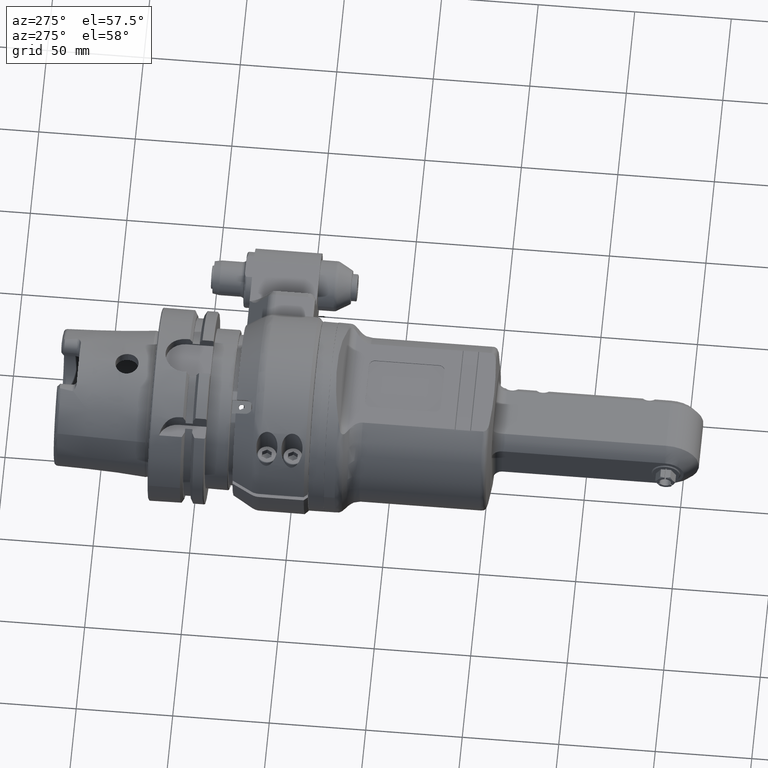
[diagram: clean part render]
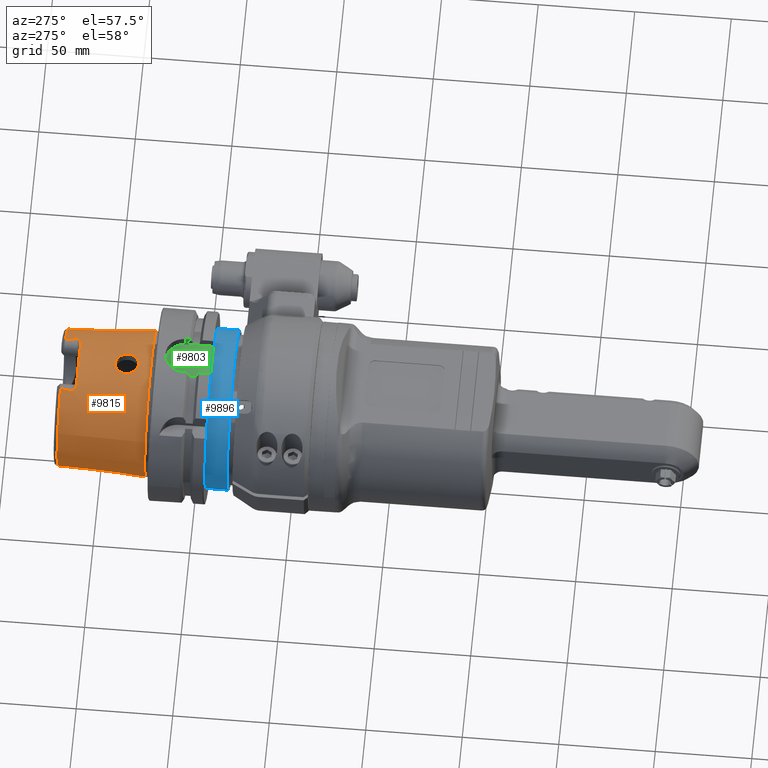
[diagram: same view with three faces highlighted in distinct colors, each labeled with its STEP entity id]
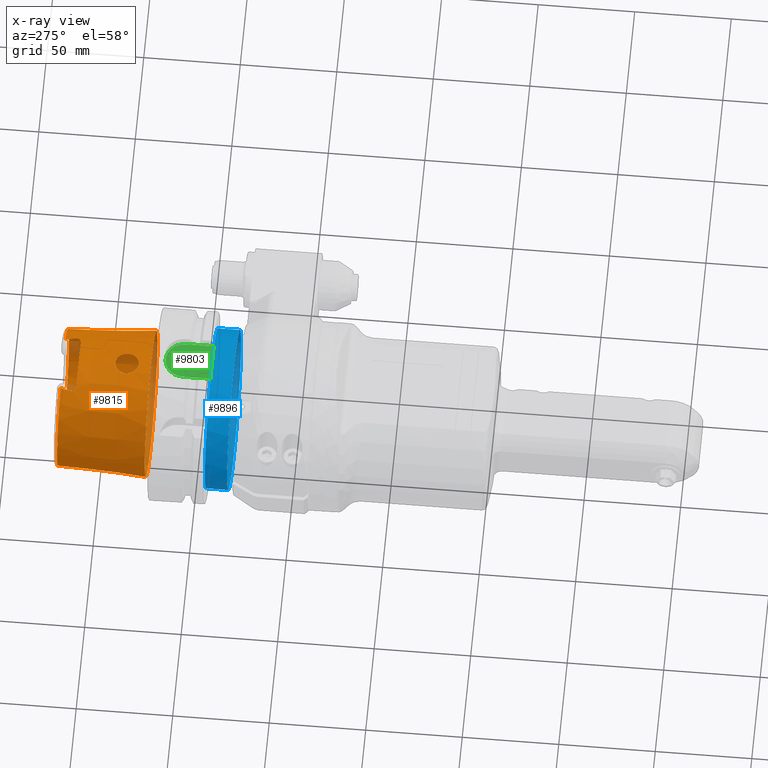
[diagram: x-ray of the same camera — body ghosted, the three highlighted faces saturated]
A machine part, auxiliary view with three faces highlighted in distinct colors.
The next image is the same camera in x-ray (body ghosted, the three faces saturated) — at least one of them is partly hidden behind the body in this view.
Their STEP definitions:

[orange] entity #9815 — the highlighted conical surface has half-angle 2.868 deg.
#120=FACE_BOUND('',#1542,.T.);
#121=FACE_BOUND('',#1543,.T.);
#223=(
BOUNDED_CURVE()
B_SPLINE_CURVE(2,(#56915,#56916,#56917),.UNSPECIFIED.,.F.,.F.)
B_SPLINE_CURVE_WITH_KNOTS((3,3),(2.97141344392928,3.96265835988855),
 .UNSPECIFIED.)
CURVE()
GEOMETRIC_REPRESENTATION_ITEM()
RATIONAL_B_SPLINE_CURVE((1.02464110441185,1.02628589834782,1.02628589827356))
REPRESENTATION_ITEM('')
);
#224=(
BOUNDED_CURVE()
B_SPLINE_CURVE(2,(#56984,#56985,#56986),.UNSPECIFIED.,.F.,.F.)
B_SPLINE_CURVE_WITH_KNOTS((3,3),(3.9626582701818,4.95390318622074),
 .UNSPECIFIED.)
CURVE()
GEOMETRIC_REPRESENTATION_ITEM()
RATIONAL_B_SPLINE_CURVE((1.02628589827313,1.02628589834766,1.02464110441169))
REPRESENTATION_ITEM('')
);
#653=CONICAL_SURFACE('',#10629,36.74017294717,0.0500570901447486);
#925=FACE_OUTER_BOUND('',#1541,.T.);
#1541=EDGE_LOOP('',(#7638,#7639,#7640,#7641,#7642,#7643,#7644,#7645,#7646,
#7647,#7648,#7649,#7650,#7651,#7652,#7653,#7654,#7655,#7656,#7657,#7658));
#1542=EDGE_LOOP('',(#7659));
#1543=EDGE_LOOP('',(#7660,#7661));
#2114=CIRCLE('',#10627,37.88261919706);
#2115=CIRCLE('',#10628,37.88261919706);
#2116=CIRCLE('',#10630,35.59772669727);
#2117=CIRCLE('',#10631,36.25402645881);
#2118=CIRCLE('',#10632,35.59772669727);
#2119=CIRCLE('',#10633,36.00353175058);
#2120=CIRCLE('',#10634,35.59772669727);
#2446=B_SPLINE_CURVE_WITH_KNOTS('',3,(#56896,#56897,#56898,#56899,#56900,
#56901,#56902,#56903,#56904,#56905,#56906,#56907,#56908,#56909,#56910,#56911,
#56912,#56913),.UNSPECIFIED.,.F.,.F.,(4,2,2,2,2,2,2,2,4),(1.95351747742074,
1.96415168134067,1.9747858852606,1.99605429310045,2.07500752198644,2.15396075087244,
2.37309502710521,2.59222930333799,2.83524321414784),.UNSPECIFIED.);
#2447=B_SPLINE_CURVE_WITH_KNOTS('',3,(#56919,#56920,#56921,#56922,#56923,
#56924,#56925,#56926,#56927,#56928,#56929,#56930,#56931,#56932,#56933,#56934,
#56935,#56936,#56937),.UNSPECIFIED.,.F.,.F.,(4,2,2,2,2,2,3,2,4),(0.880850159135021,
1.06197193937717,1.12429506029204,1.14773343290938,1.16113788293459,1.16784010794719,
1.1745423329598,1.1812615850908,1.18523491439442),.UNSPECIFIED.);
#2448=B_SPLINE_CURVE_WITH_KNOTS('',3,(#56939,#56940,#56941,#56942,#56943,
#56944,#56945,#56946,#56947,#56948,#56949,#56950),.UNSPECIFIED.,.F.,.F.,
(4,2,2,2,2,4),(-2.21811633364772,-2.19053511535296,-2.02523452835063,-1.9375169475588,
-1.89629131750475,-1.88277978154764),.UNSPECIFIED.);
#2449=B_SPLINE_CURVE_WITH_KNOTS('',3,(#56954,#56955,#56956,#56957,#56958,
#56959,#56960,#56961,#56962,#56963),.UNSPECIFIED.,.F.,.F.,(4,2,2,2,4),(-0.968342178380193,
-0.916829721728276,-0.81436746422335,-0.475336799953219,-0.355883563659341),
 .UNSPECIFIED.);
#2450=B_SPLINE_CURVE_WITH_KNOTS('',3,(#56965,#56966,#56967,#56968,#56969,
#56970,#56971,#56972,#56973,#56974,#56975,#56976,#56977,#56978,#56979,#56980,
#56981,#56982),.UNSPECIFIED.,.F.,.F.,(4,2,2,2,2,2,2,2,4),(0.576465429523074,
0.580438758827661,0.587158010958199,0.593860235970344,0.60056246098249,
0.613966911006781,0.63740528362252,0.699728404533146,0.880850184762865),
 .UNSPECIFIED.);
#2451=B_SPLINE_CURVE_WITH_KNOTS('',3,(#56988,#56989,#56990,#56991,#56992,
#56993,#56994,#56995,#56996,#56997,#56998,#56999,#57000,#57001,#57002,#57003,
#57004,#57005),.UNSPECIFIED.,.F.,.F.,(4,2,2,2,2,2,2,2,4),(1.0717917443354,
1.31480565516204,1.53393993138363,1.75307420760523,1.83202743648706,1.91098066536889,
1.93224907320764,1.94288327712701,1.95351748104638),.UNSPECIFIED.);
#2452=B_SPLINE_CURVE_WITH_KNOTS('',3,(#57009,#57010,#57011,#57012,#57013,
#57014,#57015,#57016),.UNSPECIFIED.,.F.,.F.,(4,2,2,4),(2.25015551751675,
2.37309502814378,2.59222930392852,2.83524321428847),.UNSPECIFIED.);
#2453=B_SPLINE_CURVE_WITH_KNOTS('',3,(#57018,#57019,#57020,#57021,#57022,
#57023,#57024,#57025,#57026,#57027,#57028,#57029,#57030,#57031),
 .UNSPECIFIED.,.F.,.F.,(4,2,2,2,2,2,4),(0.711766951876582,0.73217229522712,
0.759580173348406,0.791109244943153,0.847374258154563,0.994679561113807,
1.15970822158042),.UNSPECIFIED.);
#2454=B_SPLINE_CURVE_WITH_KNOTS('',3,(#57035,#57036,#57037,#57038,#57039,
#57040,#57041,#57042,#57043,#57044,#57045,#57046,#57047,#57048),
 .UNSPECIFIED.,.F.,.F.,(4,2,2,2,2,2,4),(-0.929951198099741,-0.898553991922293,
-0.853770881530642,-0.802983637328384,-0.726748246761294,-0.48788984865174,
-0.375270817784569),.UNSPECIFIED.);
#2455=B_SPLINE_CURVE_WITH_KNOTS('',3,(#57050,#57051,#57052,#57053,#57054,
#57055,#57056,#57057),.UNSPECIFIED.,.F.,.F.,(4,2,2,4),(1.07179174434778,
1.31480565470068,1.53393993048412,1.65687944114178),.UNSPECIFIED.);
#2456=B_SPLINE_CURVE_WITH_KNOTS('',3,(#57060,#57061,#57062,#57063,#57064,
#57065,#57066,#57067,#57068,#57069,#57070,#57071,#57072,#57073,#57074,#57075,
#57076,#57077,#57078,#57079,#57080,#57081,#57082,#57083,#57084,#57085,#57086,
#57087,#57088,#57089,#57090,#57091,#57092,#57093),.UNSPECIFIED.,.T.,.F.,
(4,2,2,2,2,2,2,2,2,2,2,2,2,2,2,2,4),(-3.62526048863598,-3.4004530432976,
-3.17564559795922,-2.95051015909361,-2.72537472022801,-2.5002392813624,
-2.27510384249679,-2.05029639715841,-1.82548895182003,-1.59713724610656,
-1.36878554039308,-1.14076500815155,-0.912744475910015,-0.684723943668482,
-0.456703411426949,-0.228351705713474,0.),.UNSPECIFIED.);
#2457=B_SPLINE_CURVE_WITH_KNOTS('',3,(#57096,#57097,#57098,#57099,#57100,
#57101,#57102,#57103,#57104,#57105,#57106,#57107,#57108,#57109,#57110,#57111,
#57112,#57113),.UNSPECIFIED.,.F.,.F.,(4,2,2,2,2,2,2,2,4),(-3.62042001085126,
-3.3969087829225,-3.16855707720903,-2.9405365449675,-2.71251601272596,-2.48449548048443,
-2.2564749482429,-2.02812324252942,-1.80461203294813),.UNSPECIFIED.);
#2458=B_SPLINE_CURVE_WITH_KNOTS('',3,(#57114,#57115,#57116,#57117,#57118,
#57119,#57120,#57121,#57122,#57123,#57124,#57125,#57126,#57127,#57128,#57129,
#57130,#57131,#57132,#57133,#57134,#57135,#57136),.UNSPECIFIED.,.F.,.F.,
(4,2,2,2,2,2,2,2,2,3,4),(-1.80461203294813,-1.79977153681595,-1.57496409147757,
-1.35015664613919,-1.12502120727358,-0.899885768407974,-0.674750329542366,
-0.449614890676758,-0.224807445338379,0.,0.00484047778471908),
 .UNSPECIFIED.);
#2838=LINE('',#56892,#3571);
#3571=VECTOR('',#12360,36.74017294717);
#4412=VERTEX_POINT('',#56885);
#4413=VERTEX_POINT('',#56886);
#4414=VERTEX_POINT('',#56891);
#4415=VERTEX_POINT('',#56893);
#4416=VERTEX_POINT('',#56895);
#4417=VERTEX_POINT('',#56914);
#4418=VERTEX_POINT('',#56918);
#4419=VERTEX_POINT('',#56938);
#4420=VERTEX_POINT('',#56951);
#4421=VERTEX_POINT('',#56953);
#4422=VERTEX_POINT('',#56964);
#4423=VERTEX_POINT('',#56983);
#4424=VERTEX_POINT('',#56987);
#4425=VERTEX_POINT('',#57006);
#4426=VERTEX_POINT('',#57008);
#4427=VERTEX_POINT('',#57017);
#4428=VERTEX_POINT('',#57032);
#4429=VERTEX_POINT('',#57034);
#4430=VERTEX_POINT('',#57049);
#4431=VERTEX_POINT('',#57059);
#4432=VERTEX_POINT('',#57094);
#4433=VERTEX_POINT('',#57095);
#5589=EDGE_CURVE('',#4412,#4413,#2114,.T.);
#5591=EDGE_CURVE('',#4413,#4412,#2115,.T.);
#5592=EDGE_CURVE('',#4412,#4414,#2838,.T.);
#5593=EDGE_CURVE('',#4415,#4414,#2116,.T.);
#5594=EDGE_CURVE('',#4416,#4415,#2446,.T.);
#5595=EDGE_CURVE('',#4417,#4416,#223,.T.);
#5596=EDGE_CURVE('',#4418,#4417,#2447,.T.);
#5597=EDGE_CURVE('',#4419,#4418,#2448,.T.);
#5598=EDGE_CURVE('',#4420,#4419,#2117,.T.);
#5599=EDGE_CURVE('',#4421,#4420,#2449,.T.);
#5600=EDGE_CURVE('',#4422,#4421,#2450,.T.);
#5601=EDGE_CURVE('',#4423,#4422,#224,.T.);
#5602=EDGE_CURVE('',#4424,#4423,#2451,.T.);
#5603=EDGE_CURVE('',#4425,#4424,#2118,.T.);
#5604=EDGE_CURVE('',#4426,#4425,#2452,.T.);
#5605=EDGE_CURVE('',#4426,#4427,#2453,.T.);
#5606=EDGE_CURVE('',#4428,#4427,#2119,.T.);
#5607=EDGE_CURVE('',#4429,#4428,#2454,.T.);
#5608=EDGE_CURVE('',#4430,#4429,#2455,.T.);
#5609=EDGE_CURVE('',#4414,#4430,#2120,.T.);
#5610=EDGE_CURVE('',#4431,#4431,#2456,.T.);
#5611=EDGE_CURVE('',#4432,#4433,#2457,.T.);
#5612=EDGE_CURVE('',#4433,#4432,#2458,.T.);
#7638=ORIENTED_EDGE('',*,*,#5589,.F.);
#7639=ORIENTED_EDGE('',*,*,#5592,.T.);
#7640=ORIENTED_EDGE('',*,*,#5593,.F.);
#7641=ORIENTED_EDGE('',*,*,#5594,.F.);
#7642=ORIENTED_EDGE('',*,*,#5595,.F.);
#7643=ORIENTED_EDGE('',*,*,#5596,.F.);
#7644=ORIENTED_EDGE('',*,*,#5597,.F.);
#7645=ORIENTED_EDGE('',*,*,#5598,.F.);
#7646=ORIENTED_EDGE('',*,*,#5599,.F.);
#7647=ORIENTED_EDGE('',*,*,#5600,.F.);
#7648=ORIENTED_EDGE('',*,*,#5601,.F.);
#7649=ORIENTED_EDGE('',*,*,#5602,.F.);
#7650=ORIENTED_EDGE('',*,*,#5603,.F.);
#7651=ORIENTED_EDGE('',*,*,#5604,.F.);
#7652=ORIENTED_EDGE('',*,*,#5605,.T.);
#7653=ORIENTED_EDGE('',*,*,#5606,.F.);
#7654=ORIENTED_EDGE('',*,*,#5607,.F.);
#7655=ORIENTED_EDGE('',*,*,#5608,.F.);
#7656=ORIENTED_EDGE('',*,*,#5609,.F.);
#7657=ORIENTED_EDGE('',*,*,#5592,.F.);
#7658=ORIENTED_EDGE('',*,*,#5591,.F.);
#7659=ORIENTED_EDGE('',*,*,#5610,.T.);
#7660=ORIENTED_EDGE('',*,*,#5611,.T.);
#7661=ORIENTED_EDGE('',*,*,#5612,.T.);
#9815=ADVANCED_FACE('',(#925,#120,#121),#653,.T.);
#10627=AXIS2_PLACEMENT_3D('',#56887,#12353,#12354);
#10628=AXIS2_PLACEMENT_3D('',#56889,#12356,#12357);
#10629=AXIS2_PLACEMENT_3D('',#56890,#12358,#12359);
#10630=AXIS2_PLACEMENT_3D('',#56894,#12361,#12362);
#10631=AXIS2_PLACEMENT_3D('',#56952,#12363,#12364);
#10632=AXIS2_PLACEMENT_3D('',#57007,#12365,#12366);
#10633=AXIS2_PLACEMENT_3D('',#57033,#12367,#12368);
#10634=AXIS2_PLACEMENT_3D('',#57058,#12369,#12370);
#12353=DIRECTION('center_axis',(0.,-1.,1.2270676010003E-16));
#12354=DIRECTION('ref_axis',(-0.901999999999984,5.2976929516558E-17,0.431736030463093));
#12356=DIRECTION('center_axis',(0.,-1.,1.2270676010003E-16));
#12357=DIRECTION('ref_axis',(-0.901999999999984,5.2976929516558E-17,0.431736030463093));
#12358=DIRECTION('center_axis',(0.,-1.,1.2270676010003E-16));
#12359=DIRECTION('ref_axis',(0.901999999999984,-5.29769295165608E-17,-0.431736030463092));
#12360=DIRECTION('',(0.045132641563491,0.998747405449354,-0.0216024251806382));
#12361=DIRECTION('center_axis',(0.,1.,-1.2270676010003E-16));
#12362=DIRECTION('ref_axis',(-0.423589941730021,-1.11154415691394E-16,-0.905854050752745));
#12363=DIRECTION('center_axis',(0.,1.,-1.2270676010003E-16));
#12364=DIRECTION('ref_axis',(0.352841176761012,-1.14814657441685E-16,-0.935683228438933));
#12365=DIRECTION('center_axis',(0.,1.,-1.2270676010003E-16));
#12366=DIRECTION('ref_axis',(0.423589941729375,1.11154415691451E-16,0.905854050753047));
#12367=DIRECTION('center_axis',(0.,1.,-1.2270676010003E-16));
#12368=DIRECTION('ref_axis',(-0.345044748677395,1.15170876028783E-16,0.938586235468086));
#12369=DIRECTION('center_axis',(0.,1.,-1.2270676010003E-16));
#12370=DIRECTION('ref_axis',(-0.423589941730021,-1.11154415691394E-16,-0.905854050752745));
#56885=CARTESIAN_POINT('',(-34.1701225157541,85.4924722021158,16.355291635688));
#56886=CARTESIAN_POINT('',(34.1701225157455,85.4924722021194,-16.3552916356846));
#56887=CARTESIAN_POINT('Origin',(-4.060069640028E-12,85.49247220212,-3.05827066001153E-16));
#56889=CARTESIAN_POINT('Origin',(-4.060069640028E-12,85.49247220212,-3.05827066001153E-16));
#56890=CARTESIAN_POINT('Origin',(-4.060069640028E-12,108.29627228904,-3.10400748128979E-15));
#56891=CARTESIAN_POINT('',(-32.1091494809456,131.100072375972,15.3688212177916));
#56892=CARTESIAN_POINT('',(-33.1396359983508,108.29627228904,15.8620564267387));
#56893=CARTESIAN_POINT('',(-15.0788389774241,131.100072375969,-32.2463449263182));
#56894=CARTESIAN_POINT('Origin',(-4.04773852177651E-12,131.10007237597,
-5.90218791012513E-15));
#56895=CARTESIAN_POINT('',(-17.2220784314341,122.309422442259,-31.6567015512251));
#56896=CARTESIAN_POINT('Ctrl Pts',(-17.2220784153372,122.309422442311,-31.6567015599883));
#56897=CARTESIAN_POINT('Ctrl Pts',(-17.1909406705659,122.309422440013,-31.6736413124103));
#56898=CARTESIAN_POINT('Ctrl Pts',(-17.1602817479295,122.316165079955,-31.6898757871768));
#56899=CARTESIAN_POINT('Ctrl Pts',(-17.1010841481202,122.340529544632,-31.7204736705879));
#56900=CARTESIAN_POINT('Ctrl Pts',(-17.0725575989163,122.358192511476,-31.7348277686473));
#56901=CARTESIAN_POINT('Ctrl Pts',(-16.9913409982195,122.421686058809,-31.7748237733014));
#56902=CARTESIAN_POINT('Ctrl Pts',(-16.943119847744,122.478559894859,-31.7973063151057));
#56903=CARTESIAN_POINT('Ctrl Pts',(-16.7539351570489,122.740236803165,-31.8829715413045));
#56904=CARTESIAN_POINT('Ctrl Pts',(-16.6480990474377,122.999440628543,-31.9234627110339));
#56905=CARTESIAN_POINT('Ctrl Pts',(-16.4551734621441,123.532137453558,-31.9933264788));
#56906=CARTESIAN_POINT('Ctrl Pts',(-16.3734687541302,123.807964404626,-32.019615695522));
#56907=CARTESIAN_POINT('Ctrl Pts',(-16.1127586050632,124.76352042181,-32.0985687614792));
#56908=CARTESIAN_POINT('Ctrl Pts',(-15.9615734496456,125.490974546385,-32.1330159836246));
#56909=CARTESIAN_POINT('Ctrl Pts',(-15.682637857892,126.976696146467,-32.1872927901172));
#56910=CARTESIAN_POINT('Ctrl Pts',(-15.5577250750558,127.735552357204,-32.2055397465087));
#56911=CARTESIAN_POINT('Ctrl Pts',(-15.3110707220721,129.359161243694,-32.2335467174601));
#56912=CARTESIAN_POINT('Ctrl Pts',(-15.1915252095644,130.226206429029,-32.2419810937322));
#56913=CARTESIAN_POINT('Ctrl Pts',(-15.0788389774374,131.10007237597,-32.2463449263096));
#56914=CARTESIAN_POINT('',(-19.7607926843341,120.000000000089,-30.2755742002442));
#56915=CARTESIAN_POINT('Ctrl Pts',(-19.760792684367,120.000000000118,-30.2755742002257));
#56916=CARTESIAN_POINT('Ctrl Pts',(-18.4894012019291,122.309422546289,-30.9672446189069));
#56917=CARTESIAN_POINT('Ctrl Pts',(-17.2220784313653,122.309422442182,-31.6567015512759));
#56918=CARTESIAN_POINT('',(-17.2958116191341,119.229703254579,-31.792233940204));
#56919=CARTESIAN_POINT('Ctrl Pts',(-17.2958117319328,119.229703254563,-31.7922338788359));
#56920=CARTESIAN_POINT('Ctrl Pts',(-17.8261498365252,119.229703248731,-31.5037159987098));
#56921=CARTESIAN_POINT('Ctrl Pts',(-18.4507527759537,119.273514318881,-31.1392529649616));
#56922=CARTESIAN_POINT('Ctrl Pts',(-19.1249903159267,119.429572390918,-30.7155145694505));
#56923=CARTESIAN_POINT('Ctrl Pts',(-19.3283468362131,119.489438730329,-30.5843319325354));
#56924=CARTESIAN_POINT('Ctrl Pts',(-19.5479485937452,119.598596989926,-30.4374233452039));
#56925=CARTESIAN_POINT('Ctrl Pts',(-19.6175869794749,119.639846459348,-30.39010851942));
#56926=CARTESIAN_POINT('Ctrl Pts',(-19.7001264343484,119.71014442129,-30.3324232998638));
#56927=CARTESIAN_POINT('Ctrl Pts',(-19.7308081134273,119.741559546607,-30.3105871269043));
#56928=CARTESIAN_POINT('Ctrl Pts',(-19.7647782233519,119.796112903471,-30.2851739589189));
#56929=CARTESIAN_POINT('Ctrl Pts',(-19.7741376000108,119.815516113189,-30.2779004366636));
#56930=CARTESIAN_POINT('Ctrl Pts',(-19.7867895923066,119.856434014018,-30.2671847325074));
#56931=CARTESIAN_POINT('Ctrl Pts',(-19.7900983204068,119.87794119344,-30.2637329007029));
#56932=CARTESIAN_POINT('Ctrl Pts',(-19.7894865307163,119.900253958639,-30.2627973298188));
#56933=CARTESIAN_POINT('Ctrl Pts',(-19.7888731867636,119.922623409803,-30.2618593821006));
#56934=CARTESIAN_POINT('Ctrl Pts',(-19.7843672324716,119.944184953197,-30.2635160267487));
#56935=CARTESIAN_POINT('Ctrl Pts',(-19.7724984310362,119.976848285303,-30.2693164621919));
#56936=CARTESIAN_POINT('Ctrl Pts',(-19.7670550943,119.988624628288,-30.2721672844563));
#56937=CARTESIAN_POINT('Ctrl Pts',(-19.7607926843164,120.000000000074,-30.2755742002614));
#56938=CARTESIAN_POINT('',(-12.7919133580441,117.999999999998,-33.9222845209035));
#56939=CARTESIAN_POINT('Ctrl Pts',(-12.7919133580431,118.,-33.922284520901));
#56940=CARTESIAN_POINT('Ctrl Pts',(-12.9462563527709,118.,-33.8640825971844));
#56941=CARTESIAN_POINT('Ctrl Pts',(-13.1078601684653,118.00788237048,-33.8015214636964));
#56942=CARTESIAN_POINT('Ctrl Pts',(-14.2887001222671,118.126826413066,-33.3303756139555));
#56943=CARTESIAN_POINT('Ctrl Pts',(-15.1856660504596,118.517364328609,-32.9013763546066));
#56944=CARTESIAN_POINT('Ctrl Pts',(-16.2665692971439,118.979220737936,-32.3477305475557));
#56945=CARTESIAN_POINT('Ctrl Pts',(-16.5464918144985,119.093921469171,-32.1975783895266));
#56946=CARTESIAN_POINT('Ctrl Pts',(-16.9276609812447,119.193538066503,-31.9921216718047));
#56947=CARTESIAN_POINT('Ctrl Pts',(-17.0495968556438,119.216190012626,-31.9260329377716));
#56948=CARTESIAN_POINT('Ctrl Pts',(-17.2149616884379,119.228227541059,-31.8362033218791));
#56949=CARTESIAN_POINT('Ctrl Pts',(-17.2554367563616,119.229703255021,-31.8141989276617));
#56950=CARTESIAN_POINT('Ctrl Pts',(-17.2958116191327,119.229703254577,-31.7922339402014));
#56951=CARTESIAN_POINT('',(12.7919133580459,117.999999999988,-33.9222845208935));
#56952=CARTESIAN_POINT('Origin',(-4.060069640028E-12,118.,-4.29472047619454E-15));
#56953=CARTESIAN_POINT('',(17.2958116191559,119.229703254579,-31.792233940194));
#56954=CARTESIAN_POINT('Ctrl Pts',(17.295811619151,119.229703254615,-31.7922339401848));
#56955=CARTESIAN_POINT('Ctrl Pts',(17.2061086581328,119.229703255601,-31.8410347107309));
#56956=CARTESIAN_POINT('Ctrl Pts',(17.1184606066973,119.222421721539,-31.8886491594871));
#56957=CARTESIAN_POINT('Ctrl Pts',(16.8557389483145,119.181972694756,-32.0310465175738));
#56958=CARTESIAN_POINT('Ctrl Pts',(16.6786340103077,119.130256357617,-32.1266727712629));
#56959=CARTESIAN_POINT('Ctrl Pts',(15.844758539429,118.827193141583,-32.5702452190954));
#56960=CARTESIAN_POINT('Ctrl Pts',(15.0274939144756,118.393492827711,-32.9882754200444));
#56961=CARTESIAN_POINT('Ctrl Pts',(13.7106306084529,118.076543459956,-33.5594226413758));
#56962=CARTESIAN_POINT('Ctrl Pts',(13.271713052681,117.99999999999,-33.7413546038922));
#56963=CARTESIAN_POINT('Ctrl Pts',(12.7919133580472,117.999999999991,-33.9222845208968));
#56964=CARTESIAN_POINT('',(19.7607926841759,120.000000000079,-30.2755742003442));
#56965=CARTESIAN_POINT('Ctrl Pts',(19.7607926841618,120.000000000068,-30.2755742003574));
#56966=CARTESIAN_POINT('Ctrl Pts',(19.7670550941475,119.988624628279,-30.2721672845511));
#56967=CARTESIAN_POINT('Ctrl Pts',(19.7724984308854,119.976848285291,-30.2693164622859));
#56968=CARTESIAN_POINT('Ctrl Pts',(19.7843672323216,119.944184953183,-30.2635160268423));
#56969=CARTESIAN_POINT('Ctrl Pts',(19.7888731866133,119.92262340979,-30.2618593821944));
#56970=CARTESIAN_POINT('Ctrl Pts',(19.7900983202564,119.87794119343,-30.2637329007966));
#56971=CARTESIAN_POINT('Ctrl Pts',(19.7867895921564,119.856434014009,-30.2671847326008));
#56972=CARTESIAN_POINT('Ctrl Pts',(19.7741375998613,119.815516113182,-30.2779004367564));
#56973=CARTESIAN_POINT('Ctrl Pts',(19.7647782232029,119.796112903465,-30.2851739590112));
#56974=CARTESIAN_POINT('Ctrl Pts',(19.7308081132802,119.741559546605,-30.3105871269949));
#56975=CARTESIAN_POINT('Ctrl Pts',(19.700126434203,119.71014442129,-30.332423299953));
#56976=CARTESIAN_POINT('Ctrl Pts',(19.617586979334,119.639846459351,-30.3901085195054));
#56977=CARTESIAN_POINT('Ctrl Pts',(19.5479485936082,119.598596989932,-30.4374233452863));
#56978=CARTESIAN_POINT('Ctrl Pts',(19.3283468360883,119.489438730342,-30.5843319326083));
#56979=CARTESIAN_POINT('Ctrl Pts',(19.1249903158133,119.429572390934,-30.715514569515));
#56980=CARTESIAN_POINT('Ctrl Pts',(18.4507527758785,119.273514318906,-31.1392529649993));
#56981=CARTESIAN_POINT('Ctrl Pts',(17.8261498353228,119.229703254591,-31.5037159965867));
#56982=CARTESIAN_POINT('Ctrl Pts',(17.2958117319249,119.229703254591,-31.7922338788342));
#56983=CARTESIAN_POINT('',(17.2220784310259,122.309422441989,-31.6567015514451));
#56984=CARTESIAN_POINT('Ctrl Pts',(17.2220784309622,122.30942244181,-31.656701551512));
#56985=CARTESIAN_POINT('Ctrl Pts',(18.4894012016372,122.309422546284,-30.9672446190825));
#56986=CARTESIAN_POINT('Ctrl Pts',(19.7607926841856,120.000000000091,-30.2755742003404));
#56987=CARTESIAN_POINT('',(15.0788389774159,131.100072375969,-32.2463449263182));
#56988=CARTESIAN_POINT('Ctrl Pts',(15.0788389774255,131.10007237597,-32.2463449263114));
#56989=CARTESIAN_POINT('Ctrl Pts',(15.1915252095644,130.226206428918,-32.2419810937346));
#56990=CARTESIAN_POINT('Ctrl Pts',(15.3110707220854,129.359161243472,-32.2335467174623));
#56991=CARTESIAN_POINT('Ctrl Pts',(15.5577250750851,127.735552356871,-32.2055397465092));
#56992=CARTESIAN_POINT('Ctrl Pts',(15.6826378579215,126.976696146129,-32.1872927901176));
#56993=CARTESIAN_POINT('Ctrl Pts',(15.9615734496757,125.49097454604,-32.1330159836249));
#56994=CARTESIAN_POINT('Ctrl Pts',(16.1127586050939,124.763520421461,-32.0985687614793));
#56995=CARTESIAN_POINT('Ctrl Pts',(16.3734687541618,123.807964404272,-32.0196156955215));
#56996=CARTESIAN_POINT('Ctrl Pts',(16.455173462176,123.532137453203,-31.9933264787994));
#56997=CARTESIAN_POINT('Ctrl Pts',(16.6480990474702,122.999440628187,-31.9234627110328));
#56998=CARTESIAN_POINT('Ctrl Pts',(16.7539351570817,122.740236802808,-31.8829715413032));
#56999=CARTESIAN_POINT('Ctrl Pts',(16.9431198477778,122.478559894501,-31.7973063151037));
#57000=CARTESIAN_POINT('Ctrl Pts',(16.9913409982536,122.421686058451,-31.7748237732992));
#57001=CARTESIAN_POINT('Ctrl Pts',(17.0725575989509,122.358192511118,-31.7348277686447));
#57002=CARTESIAN_POINT('Ctrl Pts',(17.1010841481549,122.340529544275,-31.7204736705851));
#57003=CARTESIAN_POINT('Ctrl Pts',(17.1602817479645,122.316165079598,-31.6898757871738));
#57004=CARTESIAN_POINT('Ctrl Pts',(17.1909406705374,122.309422441953,-31.6736413122903));
#57005=CARTESIAN_POINT('Ctrl Pts',(17.2220784153724,122.309422441954,-31.656701559985));
#57006=CARTESIAN_POINT('',(15.0788389774059,131.100072375741,32.2463449263418));
#57007=CARTESIAN_POINT('Origin',(-4.04773852177651E-12,131.10007237597,
-5.90218791012513E-15));
#57008=CARTESIAN_POINT('',(16.0738114170159,124.999999999981,32.104236002674));
#57009=CARTESIAN_POINT('Ctrl Pts',(16.0738114170184,124.999999999982,32.1042360026792));
#57010=CARTESIAN_POINT('Ctrl Pts',(15.9831851934085,125.40538976505,32.1268973905207));
#57011=CARTESIAN_POINT('Ctrl Pts',(15.9003503852971,125.817072870104,32.1449291009408));
#57012=CARTESIAN_POINT('Ctrl Pts',(15.6826378579059,126.976696145585,32.1872927901556));
#57013=CARTESIAN_POINT('Ctrl Pts',(15.5577250750672,127.735552356349,32.2055397465469));
#57014=CARTESIAN_POINT('Ctrl Pts',(15.3110707220534,129.35916124306,32.2335467175004));
#57015=CARTESIAN_POINT('Ctrl Pts',(15.191525209522,130.226206428595,32.2419810937725));
#57016=CARTESIAN_POINT('Ctrl Pts',(15.0788389773738,131.100072375737,32.2463449263484));
#57017=CARTESIAN_POINT('',(12.4228295644059,122.999999999992,33.7924193293147));
#57018=CARTESIAN_POINT('Ctrl Pts',(16.0738114170158,124.999999999981,32.1042360026806));
#57019=CARTESIAN_POINT('Ctrl Pts',(16.0827312175113,124.96009989509,32.1020055769781));
#57020=CARTESIAN_POINT('Ctrl Pts',(16.0870940726199,124.919061705604,32.1021180063972));
#57021=CARTESIAN_POINT('Ctrl Pts',(16.0839989881563,124.819541596349,32.1092454079948));
#57022=CARTESIAN_POINT('Ctrl Pts',(16.072034440001,124.764106689047,32.11834997361));
#57023=CARTESIAN_POINT('Ctrl Pts',(16.0290258082421,124.64812853062,32.1463311246156));
#57024=CARTESIAN_POINT('Ctrl Pts',(15.9924646289958,124.579762532288,32.1684158692367));
#57025=CARTESIAN_POINT('Ctrl Pts',(15.8335675482527,124.365647999464,32.2590183941683));
#57026=CARTESIAN_POINT('Ctrl Pts',(15.6937776253042,124.239181946133,32.3343378896113));
#57027=CARTESIAN_POINT('Ctrl Pts',(15.285621093207,123.905716997182,32.5491942433267));
#57028=CARTESIAN_POINT('Ctrl Pts',(14.8464261333401,123.630467395445,32.7703166106151));
#57029=CARTESIAN_POINT('Ctrl Pts',(13.7398962869335,123.16245530691,33.2760671292929));
#57030=CARTESIAN_POINT('Ctrl Pts',(13.0891858728803,123.000000000003,33.5474522327443));
#57031=CARTESIAN_POINT('Ctrl Pts',(12.4228295644075,123.,33.7924193293188));
#57032=CARTESIAN_POINT('',(-12.4228295643841,123.000000000002,33.7924193293247));
#57033=CARTESIAN_POINT('Origin',(-4.0498150872655E-12,123.,-4.90825427470424E-15));
#57034=CARTESIAN_POINT('',(-16.0738114170541,125.000000000001,32.104236002664));
#57035=CARTESIAN_POINT('Ctrl Pts',(-16.073811417059,125.000000000003,32.1042360026618));
#57036=CARTESIAN_POINT('Ctrl Pts',(-16.0837119187055,124.955713016872,32.1017603493827));
#57037=CARTESIAN_POINT('Ctrl Pts',(-16.0878449887303,124.910677567991,32.1022116821973));
#57038=CARTESIAN_POINT('Ctrl Pts',(-16.0815361027193,124.798635791242,32.1116506903077));
#57039=CARTESIAN_POINT('Ctrl Pts',(-16.064379243458,124.736037021965,32.1237574005346));
#57040=CARTESIAN_POINT('Ctrl Pts',(-16.009233616648,124.609439699166,32.1583644916647));
#57041=CARTESIAN_POINT('Ctrl Pts',(-15.9633700088968,124.533791244105,32.185471495734));
#57042=CARTESIAN_POINT('Ctrl Pts',(-15.7849188457532,124.318351865172,32.2855092338161));
#57043=CARTESIAN_POINT('Ctrl Pts',(-15.6445379523189,124.195106363047,32.3607302130264));
#57044=CARTESIAN_POINT('Ctrl Pts',(-15.1023350317036,123.773752731183,32.643507988288));
#57045=CARTESIAN_POINT('Ctrl Pts',(-14.4191477338859,123.379875870544,32.9810214495384));
#57046=CARTESIAN_POINT('Ctrl Pts',(-13.2256793302848,123.059942340653,33.4856959053612));
#57047=CARTESIAN_POINT('Ctrl Pts',(-12.8260801510063,123.,33.6441756282647));
#57048=CARTESIAN_POINT('Ctrl Pts',(-12.4228295643859,122.999999999999,33.7924193293298));
#57049=CARTESIAN_POINT('',(-15.0788389773541,131.100072375971,32.2463449263418));
#57050=CARTESIAN_POINT('Ctrl Pts',(-15.0788389773554,131.100072375972,32.2463449263479));
#57051=CARTESIAN_POINT('Ctrl Pts',(-15.1915252095013,130.226206428855,32.2419810937717));
#57052=CARTESIAN_POINT('Ctrl Pts',(-15.3110707220299,129.359161243345,32.2335467174996));
#57053=CARTESIAN_POINT('Ctrl Pts',(-15.5577250750402,127.735552356664,32.2055397465463));
#57054=CARTESIAN_POINT('Ctrl Pts',(-15.6826378578787,126.976696145904,32.187292790155));
#57055=CARTESIAN_POINT('Ctrl Pts',(-15.9003503852892,125.817072870324,32.1449291009364));
#57056=CARTESIAN_POINT('Ctrl Pts',(-15.9831851934225,125.405389765169,32.1268973905112));
#57057=CARTESIAN_POINT('Ctrl Pts',(-16.0738114170593,125.000000000003,32.1042360026617));
#57058=CARTESIAN_POINT('Origin',(-4.04773852177651E-12,131.10007237597,
-5.90218791012513E-15));
#57059=CARTESIAN_POINT('',(5.99998877505505,98.0000001634272,36.7696907674567));
#57060=CARTESIAN_POINT('Ctrl Pts',(-5.99980470310251,98.0484099646541,36.7672621583658));
#57061=CARTESIAN_POINT('Ctrl Pts',(-5.99376601288193,98.7968294738454,36.7302566027818));
#57062=CARTESIAN_POINT('Ctrl Pts',(-5.83863229740389,99.5947887680376,36.7160376066793));
#57063=CARTESIAN_POINT('Ctrl Pts',(-5.22123197919134,101.061325726204,36.73470261032));
#57064=CARTESIAN_POINT('Ctrl Pts',(-4.75898873129066,101.729930158619,36.7662312838117));
#57065=CARTESIAN_POINT('Ctrl Pts',(-3.69589739220896,102.785638045067,36.8351264327473));
#57066=CARTESIAN_POINT('Ctrl Pts',(-3.02341326457652,103.243409985977,36.8769209204506));
#57067=CARTESIAN_POINT('Ctrl Pts',(-1.55072413050941,103.850609443021,36.937701975756));
#57068=CARTESIAN_POINT('Ctrl Pts',(-0.75045146288942,104.000000000001,36.9554116418801));
#57069=CARTESIAN_POINT('Ctrl Pts',(0.750451462881301,104.000000000001,36.9554116418801));
#57070=CARTESIAN_POINT('Ctrl Pts',(1.55072413050129,103.850609443021,36.937701975756));
#57071=CARTESIAN_POINT('Ctrl Pts',(3.0234132645684,103.243409985977,36.8769209204506));
#57072=CARTESIAN_POINT('Ctrl Pts',(3.69589739220084,102.785638045067,36.8351264327473));
#57073=CARTESIAN_POINT('Ctrl Pts',(4.75898873128255,101.729930158619,36.7662312838117));
#57074=CARTESIAN_POINT('Ctrl Pts',(5.22123197918322,101.061325726204,36.73470261032));
#57075=CARTESIAN_POINT('Ctrl Pts',(5.83863229739577,99.5947887680376,36.7160376066793));
#57076=CARTESIAN_POINT('Ctrl Pts',(5.99376601287381,98.7968294738454,36.7302566027818));
#57077=CARTESIAN_POINT('Ctrl Pts',(6.00593859785961,97.2881910526166,36.8048511346817));
#57078=CARTESIAN_POINT('Ctrl Pts',(5.85928385967152,96.4785917555153,36.8708767598658));
#57079=CARTESIAN_POINT('Ctrl Pts',(5.25235338608637,94.990236462429,37.0375277265104));
#57080=CARTESIAN_POINT('Ctrl Pts',(4.79218191278853,94.3112831208856,37.136767339581));
#57081=CARTESIAN_POINT('Ctrl Pts',(3.72803392132978,93.2385143169141,37.3126357459111));
#57082=CARTESIAN_POINT('Ctrl Pts',(3.05289373425717,92.7725511517208,37.4008862632968));
#57083=CARTESIAN_POINT('Ctrl Pts',(1.56898843440196,92.1532353223022,37.5235103898561));
#57084=CARTESIAN_POINT('Ctrl Pts',(0.760068440801051,92.0000000000005,37.5565989416493));
#57085=CARTESIAN_POINT('Ctrl Pts',(-0.760068440809171,92.0000000000005,
37.5565989416493));
#57086=CARTESIAN_POINT('Ctrl Pts',(-1.56898843441009,92.1532353223022,37.5235103898561));
#57087=CARTESIAN_POINT('Ctrl Pts',(-3.0528937342653,92.7725511517208,37.4008862632968));
#57088=CARTESIAN_POINT('Ctrl Pts',(-3.7280339213379,93.2385143169141,37.3126357459111));
#57089=CARTESIAN_POINT('Ctrl Pts',(-4.79218191279665,94.3112831208856,37.136767339581));
#57090=CARTESIAN_POINT('Ctrl Pts',(-5.25235338609449,94.990236462429,37.0375277265104));
#57091=CARTESIAN_POINT('Ctrl Pts',(-5.85928385967964,96.4785917555153,36.8708767598657));
#57092=CARTESIAN_POINT('Ctrl Pts',(-6.00593859786773,97.2881910526166,36.8048511346817));
#57093=CARTESIAN_POINT('Ctrl Pts',(-5.99980470310251,98.0484099646541,36.7672621583658));
#57094=CARTESIAN_POINT('',(-6.00000000000406,98.0000001837391,-36.7696876464039));
#57095=CARTESIAN_POINT('',(5.99999999999594,98.0000000000005,-36.7696876557307));
#57096=CARTESIAN_POINT('Ctrl Pts',(-6.00000000000406,98.0000001837391,-36.7696876464039));
#57097=CARTESIAN_POINT('Ctrl Pts',(-6.00000002285219,97.2538925362074,-36.8075612252937));
#57098=CARTESIAN_POINT('Ctrl Pts',(-5.85285116528596,96.4628170742853,-36.8726430490628));
#57099=CARTESIAN_POINT('Ctrl Pts',(-5.25235338609449,94.990236462429,-37.0375277265104));
#57100=CARTESIAN_POINT('Ctrl Pts',(-4.79218191279665,94.3112831208856,-37.136767339581));
#57101=CARTESIAN_POINT('Ctrl Pts',(-3.7280339213379,93.2385143169141,-37.3126357459111));
#57102=CARTESIAN_POINT('Ctrl Pts',(-3.05289373426529,92.7725511517208,-37.4008862632968));
#57103=CARTESIAN_POINT('Ctrl Pts',(-1.56898843441007,92.1532353223022,-37.5235103898561));
#57104=CARTESIAN_POINT('Ctrl Pts',(-0.760068440809172,92.0000000000005,
-37.5565989416493));
#57105=CARTESIAN_POINT('Ctrl Pts',(0.760068440801051,92.0000000000005,-37.5565989416493));
#57106=CARTESIAN_POINT('Ctrl Pts',(1.56898843440196,92.1532353223022,-37.5235103898561));
#57107=CARTESIAN_POINT('Ctrl Pts',(3.05289373425717,92.7725511517208,-37.4008862632968));
#57108=CARTESIAN_POINT('Ctrl Pts',(3.72803392132978,93.2385143169141,-37.3126357459111));
#57109=CARTESIAN_POINT('Ctrl Pts',(4.79218191278853,94.3112831208856,-37.136767339581));
#57110=CARTESIAN_POINT('Ctrl Pts',(5.25235338608637,94.990236462429,-37.0375277265104));
#57111=CARTESIAN_POINT('Ctrl Pts',(5.85285114089521,96.4628170144925,-36.8726430557578));
#57112=CARTESIAN_POINT('Ctrl Pts',(5.99999999999594,97.2538924063025,-36.807561235616));
#57113=CARTESIAN_POINT('Ctrl Pts',(5.99999999999594,98.0000000000006,-36.7696876557307));
#57114=CARTESIAN_POINT('Ctrl Pts',(5.99999999999594,98.0000000000006,-36.7696876557307));
#57115=CARTESIAN_POINT('Ctrl Pts',(5.99999999999594,98.0161581646324,-36.7688674422064));
#57116=CARTESIAN_POINT('Ctrl Pts',(5.99993472662013,98.0322951881438,-36.7680589524773));
#57117=CARTESIAN_POINT('Ctrl Pts',(5.99376601287381,98.7968294738454,-36.7302566027818));
#57118=CARTESIAN_POINT('Ctrl Pts',(5.83863229739577,99.5947887680376,-36.7160376066793));
#57119=CARTESIAN_POINT('Ctrl Pts',(5.22123197918322,101.061325726204,-36.73470261032));
#57120=CARTESIAN_POINT('Ctrl Pts',(4.75898873128255,101.729930158619,-36.7662312838117));
#57121=CARTESIAN_POINT('Ctrl Pts',(3.69589739220084,102.785638045067,-36.8351264327473));
#57122=CARTESIAN_POINT('Ctrl Pts',(3.0234132645684,103.243409985977,-36.8769209204506));
#57123=CARTESIAN_POINT('Ctrl Pts',(1.55072413050129,103.850609443021,-36.937701975756));
#57124=CARTESIAN_POINT('Ctrl Pts',(0.750451462881301,104.000000000001,-36.9554116418801));
#57125=CARTESIAN_POINT('Ctrl Pts',(-0.750451462889419,104.000000000001,
-36.9554116418801));
#57126=CARTESIAN_POINT('Ctrl Pts',(-1.5507241305094,103.850609443021,-36.937701975756));
#57127=CARTESIAN_POINT('Ctrl Pts',(-3.02341326457652,103.243409985977,-36.8769209204506));
#57128=CARTESIAN_POINT('Ctrl Pts',(-3.69589739220896,102.785638045067,-36.8351264327473));
#57129=CARTESIAN_POINT('Ctrl Pts',(-4.75898873129066,101.729930158619,-36.7662312838117));
#57130=CARTESIAN_POINT('Ctrl Pts',(-5.22123197919134,101.061325726204,-36.73470261032));
#57131=CARTESIAN_POINT('Ctrl Pts',(-5.83863229740389,99.5947887680376,-36.7160376066793));
#57132=CARTESIAN_POINT('Ctrl Pts',(-5.99376601288193,98.7968294738454,-36.7302566027818));
#57133=CARTESIAN_POINT('Ctrl Pts',(-5.99980470310251,98.0484099646541,-36.7672621583658));
#57134=CARTESIAN_POINT('Ctrl Pts',(-5.99993472613541,98.0322952492254,-36.7680589494571));
#57135=CARTESIAN_POINT('Ctrl Pts',(-5.99999999950925,98.0161582869644,-36.7688674360774));
#57136=CARTESIAN_POINT('Ctrl Pts',(-6.00000000000406,98.0000001837391,-36.7696876464039));

[blue] entity #9896 — the highlighted cylindrical surface (bore or boss wall) has radius 41.5 mm, axis along (-0, -1, 0).
#1006=FACE_OUTER_BOUND('',#1628,.T.);
#1628=EDGE_LOOP('',(#8073,#8074,#8075,#8076,#8077));
#2179=CIRCLE('',#10759,41.5);
#2189=CIRCLE('',#10784,41.5);
#2190=CIRCLE('',#10785,41.5);
#2911=LINE('',#57785,#3644);
#3644=VECTOR('',#12745,41.5);
#4532=VERTEX_POINT('',#57740);
#4538=VERTEX_POINT('',#57781);
#4539=VERTEX_POINT('',#57782);
#5777=EDGE_CURVE('',#4532,#4532,#2179,.T.);
#5795=EDGE_CURVE('',#4538,#4539,#2189,.T.);
#5796=EDGE_CURVE('',#4539,#4538,#2190,.T.);
#5797=EDGE_CURVE('',#4539,#4532,#2911,.T.);
#8073=ORIENTED_EDGE('',*,*,#5795,.F.);
#8074=ORIENTED_EDGE('',*,*,#5796,.F.);
#8075=ORIENTED_EDGE('',*,*,#5797,.T.);
#8076=ORIENTED_EDGE('',*,*,#5777,.F.);
#8077=ORIENTED_EDGE('',*,*,#5797,.F.);
#9521=CYLINDRICAL_SURFACE('',#10783,41.5);
#9896=ADVANCED_FACE('',(#1006),#9521,.T.);
#10759=AXIS2_PLACEMENT_3D('',#57741,#12684,#12685);
#10783=AXIS2_PLACEMENT_3D('',#57780,#12739,#12740);
#10784=AXIS2_PLACEMENT_3D('',#57783,#12741,#12742);
#10785=AXIS2_PLACEMENT_3D('',#57784,#12743,#12744);
#12684=DIRECTION('center_axis',(3.552713678797E-13,1.,0.));
#12685=DIRECTION('ref_axis',(1.,-3.552713678797E-13,1.26217744835255E-25));
#12739=DIRECTION('center_axis',(-3.552713678797E-13,-1.,0.));
#12740=DIRECTION('ref_axis',(-1.,3.552713678797E-13,-1.26217744835113E-25));
#12741=DIRECTION('center_axis',(-3.552713678797E-13,-1.,0.));
#12742=DIRECTION('ref_axis',(1.42092471430452E-37,0.,1.));
#12743=DIRECTION('center_axis',(-3.552713678797E-13,-1.,0.));
#12744=DIRECTION('ref_axis',(1.42092471430452E-37,0.,1.));
#12745=DIRECTION('',(3.552713678797E-13,1.,0.));
#57740=CARTESIAN_POINT('',(41.5000000000024,53.9999999999853,5.08230035181843E-15));
#57741=CARTESIAN_POINT('Origin',(2.414326799704E-12,54.,1.61246016499498E-20));
#57780=CARTESIAN_POINT('Origin',(-1.51850187900015E-15,47.19999999999,1.61301188800121E-20));
#57781=CARTESIAN_POINT('',(-1.668752788806E-12,42.4999999999953,-41.4999999999967));
#57782=CARTESIAN_POINT('',(41.4999999999983,42.4999999999753,5.08230035181843E-15));
#57783=CARTESIAN_POINT('Origin',(-1.671293930914E-12,42.49999999999,1.61247066631135E-20));
#57784=CARTESIAN_POINT('Origin',(-1.671293930914E-12,42.49999999999,1.61247066631135E-20));
#57785=CARTESIAN_POINT('',(41.5,47.1999999999753,5.08230035181843E-15));

[green] entity #9803 — the highlighted planar face has unit normal (0, 0, -1).
#416=PLANE('',#10603);
#913=FACE_OUTER_BOUND('',#1528,.T.);
#1528=EDGE_LOOP('',(#7572,#7573,#7574,#7575));
#2101=CIRCLE('',#10602,10.);
#2817=LINE('',#56780,#3550);
#2819=LINE('',#56787,#3552);
#2820=LINE('',#56788,#3553);
#3550=VECTOR('',#12281,14.);
#3552=VECTOR('',#12289,14.);
#3553=VECTOR('',#12290,20.);
#4378=VERTEX_POINT('',#56761);
#4384=VERTEX_POINT('',#56778);
#4385=VERTEX_POINT('',#56782);
#4386=VERTEX_POINT('',#56786);
#5550=EDGE_CURVE('',#4378,#4384,#2817,.T.);
#5551=EDGE_CURVE('',#4385,#4378,#2101,.T.);
#5553=EDGE_CURVE('',#4386,#4385,#2819,.T.);
#5554=EDGE_CURVE('',#4384,#4386,#2820,.T.);
#7572=ORIENTED_EDGE('',*,*,#5553,.T.);
#7573=ORIENTED_EDGE('',*,*,#5551,.T.);
#7574=ORIENTED_EDGE('',*,*,#5550,.T.);
#7575=ORIENTED_EDGE('',*,*,#5554,.T.);
#9803=ADVANCED_FACE('',(#913),#416,.F.);
#10602=AXIS2_PLACEMENT_3D('',#56783,#12284,#12285);
#10603=AXIS2_PLACEMENT_3D('',#56785,#12287,#12288);
#12281=DIRECTION('',(0.,-1.,-2.9996548615444E-25));
#12284=DIRECTION('center_axis',(0.,0.,1.));
#12285=DIRECTION('ref_axis',(0.,1.,0.));
#12287=DIRECTION('center_axis',(0.,0.,-1.));
#12288=DIRECTION('ref_axis',(0.,-1.,0.));
#12289=DIRECTION('',(0.,1.,2.9996548615444E-25));
#12290=DIRECTION('',(1.,0.,0.));
#56761=CARTESIAN_POINT('',(-10.0000000000041,67.9999999999976,44.0000000000042));
#56778=CARTESIAN_POINT('',(-10.0000000000041,53.9999999999956,43.9999999999992));
#56780=CARTESIAN_POINT('',(-10.0000000000041,67.9999999999976,44.0000000000042));
#56782=CARTESIAN_POINT('',(9.99999999999594,67.9999999999976,44.0000000000042));
#56783=CARTESIAN_POINT('Origin',(-4.060069640028E-12,67.9999999999976,44.0000000000042));
#56785=CARTESIAN_POINT('Origin',(-4.060069640028E-12,33.0999999999956,43.9999999999966));
#56786=CARTESIAN_POINT('',(9.99999999999594,53.9999999999956,43.9999999999992));
#56787=CARTESIAN_POINT('',(9.99999999999594,53.9999999999956,43.9999999999992));
#56788=CARTESIAN_POINT('',(-10.0000000000041,53.9999999999956,43.9999999999992));